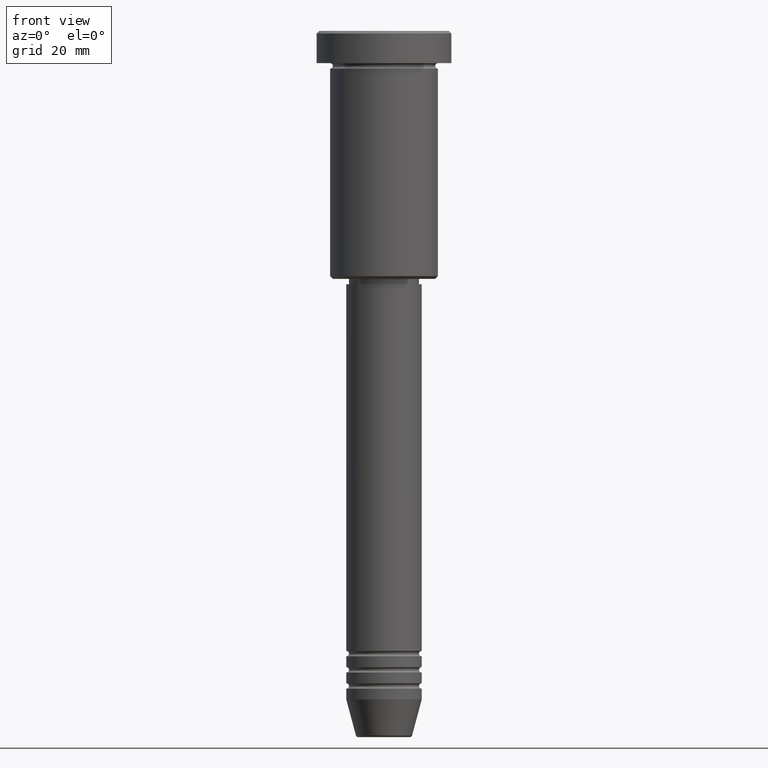
[diagram: clean part render]
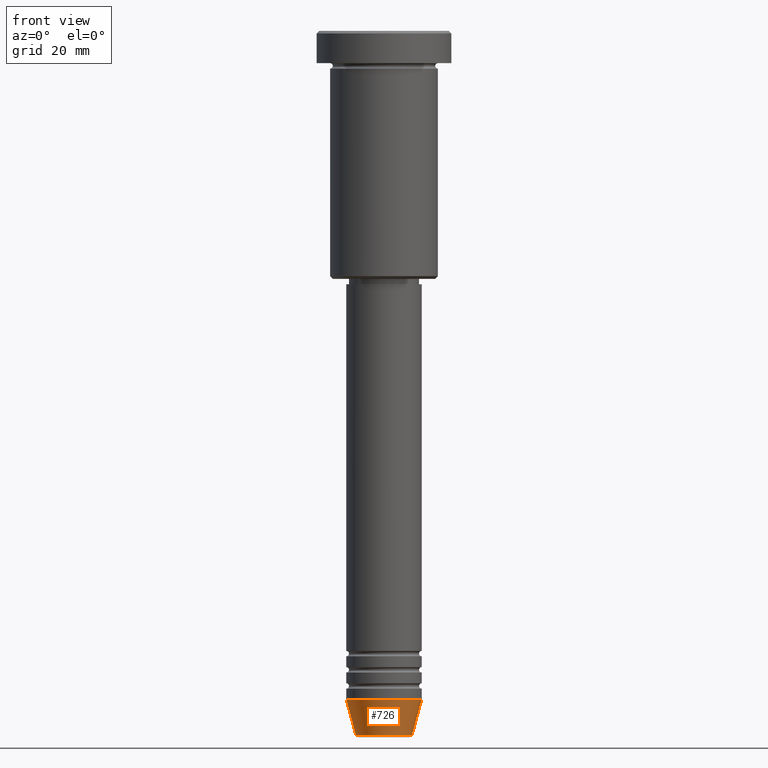
[diagram: same view with one face highlighted and labeled with its STEP entity id]
A machine part, front view. The second image highlights one B-rep face of the part: STEP entity #726.
In plain terms, the highlighted conical surface has half-angle 15 deg.
Its self-contained STEP definition (entity closure, byte-faithful):
#5 = ORIENTED_EDGE ( 'NONE', *, *, #615, .T. ) ;
#13 = CARTESIAN_POINT ( 'NONE',  ( -7.000000000000000000, 8.572527594031473190E-16, -124.0000000000000000 ) ) ;
#28 = CONICAL_SURFACE ( 'NONE', #467, 7.000000000000000000, 0.2617993877991501295 ) ;
#82 = CARTESIAN_POINT ( 'NONE',  ( -7.000000000000000000, 8.572527594031473190E-16, -124.0000000000000000 ) ) ;
#95 = VERTEX_POINT ( 'NONE', #315 ) ;
#106 = ORIENTED_EDGE ( 'NONE', *, *, #136, .T. ) ;
#117 = AXIS2_PLACEMENT_3D ( 'NONE', #812, #1163, #341 ) ;
#136 = EDGE_CURVE ( 'NONE', #797, #235, #1079, .T. ) ;
#171 = DIRECTION ( 'NONE',  ( 1.000000000000000000, 0.000000000000000000, 0.000000000000000000 ) ) ;
#177 = DIRECTION ( 'NONE',  ( -0.000000000000000000, -0.000000000000000000, 1.000000000000000000 ) ) ;
#229 = DIRECTION ( 'NONE',  ( 0.2588190451025214056, 0.000000000000000000, 0.9659258262890680902 ) ) ;
#235 = VERTEX_POINT ( 'NONE', #1051 ) ;
#252 = ORIENTED_EDGE ( 'NONE', *, *, #517, .F. ) ;
#315 = CARTESIAN_POINT ( 'NONE',  ( 7.000000000000000000, 0.000000000000000000, -124.0000000000000000 ) ) ;
#339 = ORIENTED_EDGE ( 'NONE', *, *, #718, .F. ) ;
#341 = DIRECTION ( 'NONE',  ( 1.000000000000000000, 0.000000000000000000, 0.000000000000000000 ) ) ;
#405 = LINE ( 'NONE', #782, #547 ) ;
#467 = AXIS2_PLACEMENT_3D ( 'NONE', #833, #177, #171 ) ;
#517 = EDGE_CURVE ( 'NONE', #930, #95, #1060, .T. ) ;
#547 = VECTOR ( 'NONE', #229, 1000.000000000000000 ) ;
#615 = EDGE_CURVE ( 'NONE', #235, #95, #405, .T. ) ;
#629 = DIRECTION ( 'NONE',  ( -0.000000000000000000, -0.000000000000000000, 1.000000000000000000 ) ) ;
#718 = EDGE_CURVE ( 'NONE', #797, #930, #754, .T. ) ;
#726 = ADVANCED_FACE ( 'NONE', ( #805 ), #28, .T. ) ;
#737 = CARTESIAN_POINT ( 'NONE',  ( -5.223655072137191269, 7.484830028987061160E-16, -130.6294095225512422 ) ) ;
#754 = LINE ( 'NONE', #82, #1156 ) ;
#782 = CARTESIAN_POINT ( 'NONE',  ( 7.000000000000000000, 0.000000000000000000, -124.0000000000000000 ) ) ;
#797 = VERTEX_POINT ( 'NONE', #737 ) ;
#805 = FACE_OUTER_BOUND ( 'NONE', #896, .T. ) ;
#812 = CARTESIAN_POINT ( 'NONE',  ( 0.000000000000000000, 0.000000000000000000, -130.6294095225512422 ) ) ;
#833 = CARTESIAN_POINT ( 'NONE',  ( 0.000000000000000000, 0.000000000000000000, -124.0000000000000000 ) ) ;
#839 = AXIS2_PLACEMENT_3D ( 'NONE', #1080, #629, #990 ) ;
#885 = DIRECTION ( 'NONE',  ( -0.2588190451025214056, 3.169619151431772953E-17, 0.9659258262890680902 ) ) ;
#896 = EDGE_LOOP ( 'NONE', ( #339, #106, #5, #252 ) ) ;
#930 = VERTEX_POINT ( 'NONE', #13 ) ;
#990 = DIRECTION ( 'NONE',  ( 1.000000000000000000, 0.000000000000000000, 0.000000000000000000 ) ) ;
#1051 = CARTESIAN_POINT ( 'NONE',  ( 5.223655072137191269, 0.000000000000000000, -130.6294095225512422 ) ) ;
#1060 = CIRCLE ( 'NONE', #839, 7.000000000000000000 ) ;
#1079 = CIRCLE ( 'NONE', #117, 5.223655072137191269 ) ;
#1080 = CARTESIAN_POINT ( 'NONE',  ( 0.000000000000000000, 0.000000000000000000, -124.0000000000000000 ) ) ;
#1156 = VECTOR ( 'NONE', #885, 1000.000000000000000 ) ;
#1163 = DIRECTION ( 'NONE',  ( -0.000000000000000000, -0.000000000000000000, 1.000000000000000000 ) ) ;